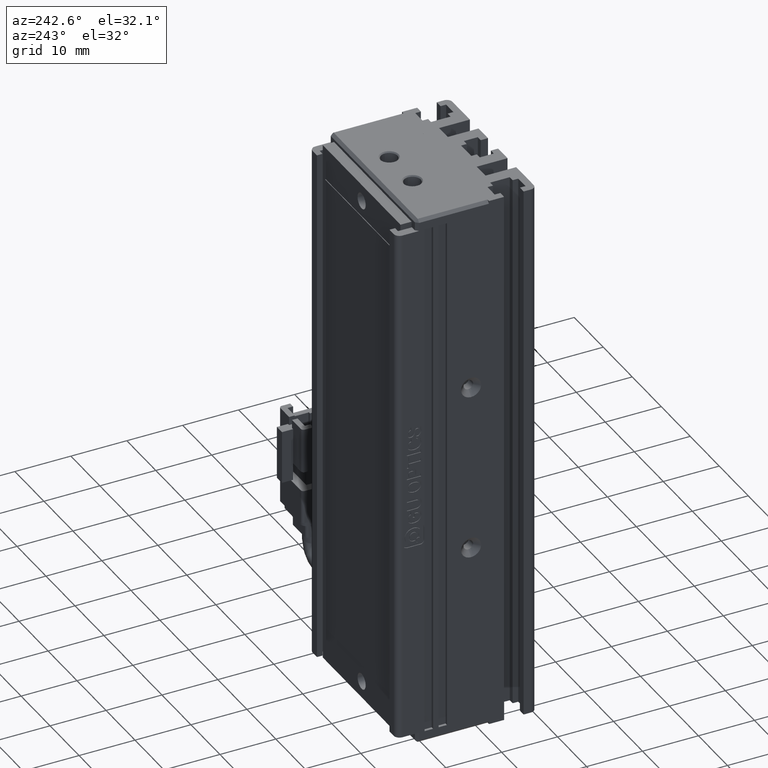
[diagram: clean part render]
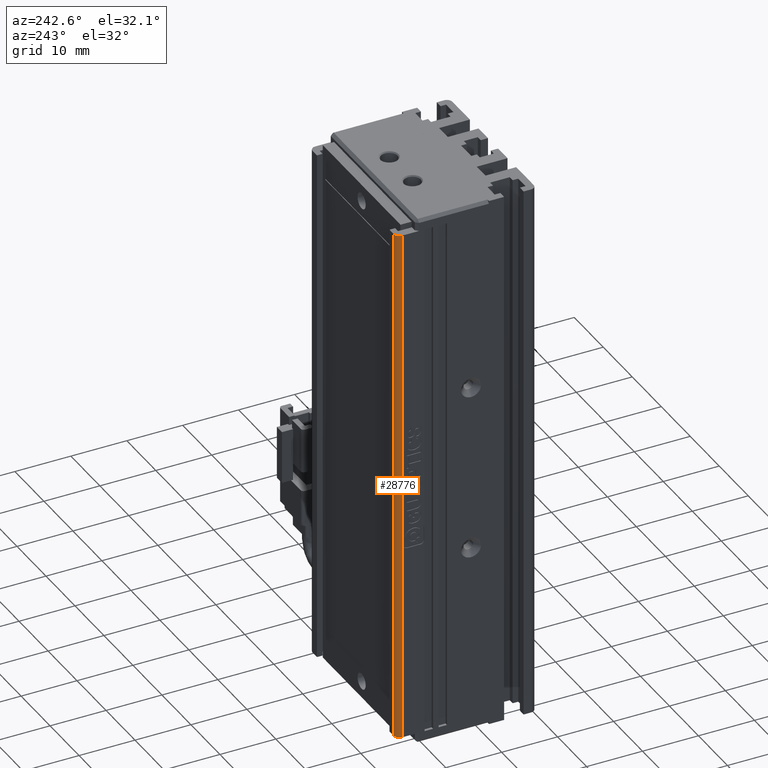
[diagram: same view with one face highlighted and labeled with its STEP entity id]
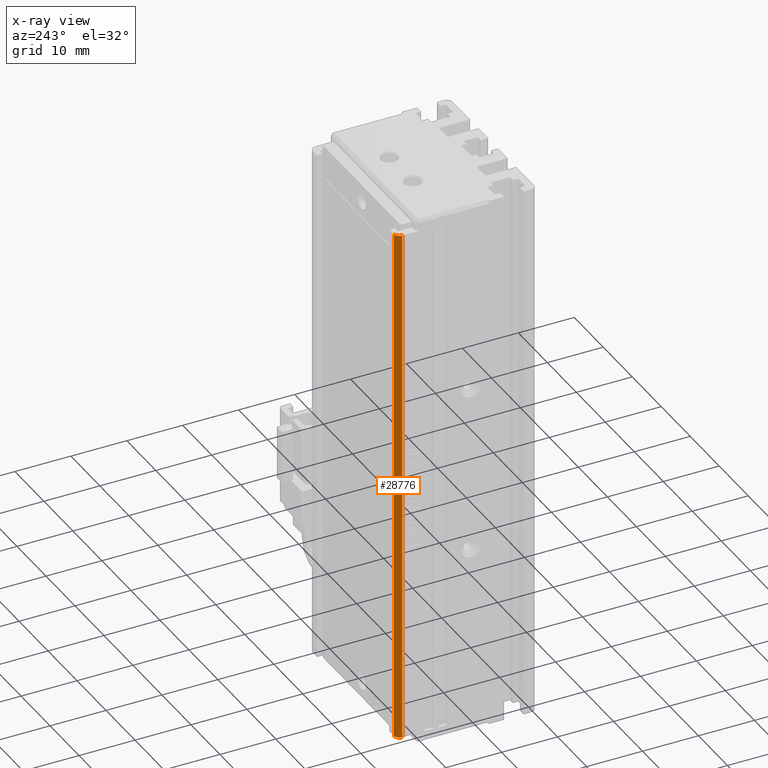
[diagram: x-ray of the same camera — body ghosted, the highlighted face saturated]
A machine part, auxiliary view. The second image highlights one B-rep face of the part: STEP entity #28776.
The next image is the same camera in x-ray: the body ghosted, the highlighted face saturated — about 0% of this face is hidden behind the body in this view.
In plain terms, the highlighted cylindrical surface (edge-blend (fillet) strip) has radius 1 mm, axis along (-0, -0, -1).
Its self-contained STEP definition (entity closure, byte-faithful):
#69 = CARTESIAN_POINT ( 'NONE',  ( 26.92537974683542100, 34.69594479660387500, -162.0000000000000000 ) ) ;
#121 = AXIS2_PLACEMENT_3D ( 'NONE', #27595, #17977, #27711 ) ;
#1314 = ORIENTED_EDGE ( 'NONE', *, *, #20231, .T. ) ;
#2232 = DIRECTION ( 'NONE',  ( -0.0000000000000000000, -0.0000000000000000000, -1.000000000000000000 ) ) ;
#2351 = CARTESIAN_POINT ( 'NONE',  ( 26.92537974683542100, 35.69594479660387500, -162.0000000000000000 ) ) ;
#2485 = DIRECTION ( 'NONE',  ( -1.000000000000000000, 0.0000000000000000000, 0.0000000000000000000 ) ) ;
#3548 = ORIENTED_EDGE ( 'NONE', *, *, #12798, .T. ) ;
#3814 = CARTESIAN_POINT ( 'NONE',  ( 25.92537974683541800, 34.69594479660387500, -68.00000000000000000 ) ) ;
#3882 = CIRCLE ( 'NONE', #24617, 0.9999999999999974500 ) ;
#4344 = VERTEX_POINT ( 'NONE', #17695 ) ;
#5598 = VERTEX_POINT ( 'NONE', #3814 ) ;
#12798 = EDGE_CURVE ( 'NONE', #5598, #16676, #29981, .T. ) ;
#13249 = LINE ( 'NONE', #24158, #25353 ) ;
#16513 = LINE ( 'NONE', #19033, #22956 ) ;
#16543 = CARTESIAN_POINT ( 'NONE',  ( 26.92537974683542100, 34.69594479660387500, -68.00000000000000000 ) ) ;
#16671 = VERTEX_POINT ( 'NONE', #2351 ) ;
#16676 = VERTEX_POINT ( 'NONE', #21570 ) ;
#16813 = DIRECTION ( 'NONE',  ( 0.0000000000000000000, 0.0000000000000000000, 1.000000000000000000 ) ) ;
#17565 = EDGE_LOOP ( 'NONE', ( #24316, #25563, #3548, #1314 ) ) ;
#17695 = CARTESIAN_POINT ( 'NONE',  ( 25.92537974683541800, 34.69594479660387500, -162.0000000000000000 ) ) ;
#17977 = DIRECTION ( 'NONE',  ( -0.0000000000000000000, -0.0000000000000000000, -1.000000000000000000 ) ) ;
#19016 = DIRECTION ( 'NONE',  ( -1.000000000000000000, 0.0000000000000000000, 0.0000000000000000000 ) ) ;
#19033 = CARTESIAN_POINT ( 'NONE',  ( 26.92537974683542100, 35.69594479660387500, -66.00000000000000000 ) ) ;
#19060 = EDGE_CURVE ( 'NONE', #5598, #4344, #13249, .T. ) ;
#19903 = FACE_OUTER_BOUND ( 'NONE', #17565, .T. ) ;
#20231 = EDGE_CURVE ( 'NONE', #16676, #16671, #16513, .T. ) ;
#20413 = AXIS2_PLACEMENT_3D ( 'NONE', #16543, #2232, #19016 ) ;
#21317 = EDGE_CURVE ( 'NONE', #16671, #4344, #3882, .T. ) ;
#21563 = DIRECTION ( 'NONE',  ( -0.0000000000000000000, -0.0000000000000000000, -1.000000000000000000 ) ) ;
#21570 = CARTESIAN_POINT ( 'NONE',  ( 26.92537974683542100, 35.69594479660387500, -68.00000000000000000 ) ) ;
#22956 = VECTOR ( 'NONE', #21563, 1000.000000000000000 ) ;
#23262 = CYLINDRICAL_SURFACE ( 'NONE', #121, 0.9999999999999974500 ) ;
#24158 = CARTESIAN_POINT ( 'NONE',  ( 25.92537974683541800, 34.69594479660387500, -66.00000000000000000 ) ) ;
#24316 = ORIENTED_EDGE ( 'NONE', *, *, #21317, .T. ) ;
#24617 = AXIS2_PLACEMENT_3D ( 'NONE', #69, #16813, #2485 ) ;
#25353 = VECTOR ( 'NONE', #26582, 1000.000000000000000 ) ;
#25563 = ORIENTED_EDGE ( 'NONE', *, *, #19060, .F. ) ;
#26582 = DIRECTION ( 'NONE',  ( -0.0000000000000000000, -0.0000000000000000000, -1.000000000000000000 ) ) ;
#27595 = CARTESIAN_POINT ( 'NONE',  ( 26.92537974683542100, 34.69594479660387500, -66.00000000000000000 ) ) ;
#27711 = DIRECTION ( 'NONE',  ( -1.000000000000000000, 0.0000000000000000000, 0.0000000000000000000 ) ) ;
#28776 = ADVANCED_FACE ( 'NONE', ( #19903 ), #23262, .T. ) ;
#29981 = CIRCLE ( 'NONE', #20413, 0.9999999999999974500 ) ;